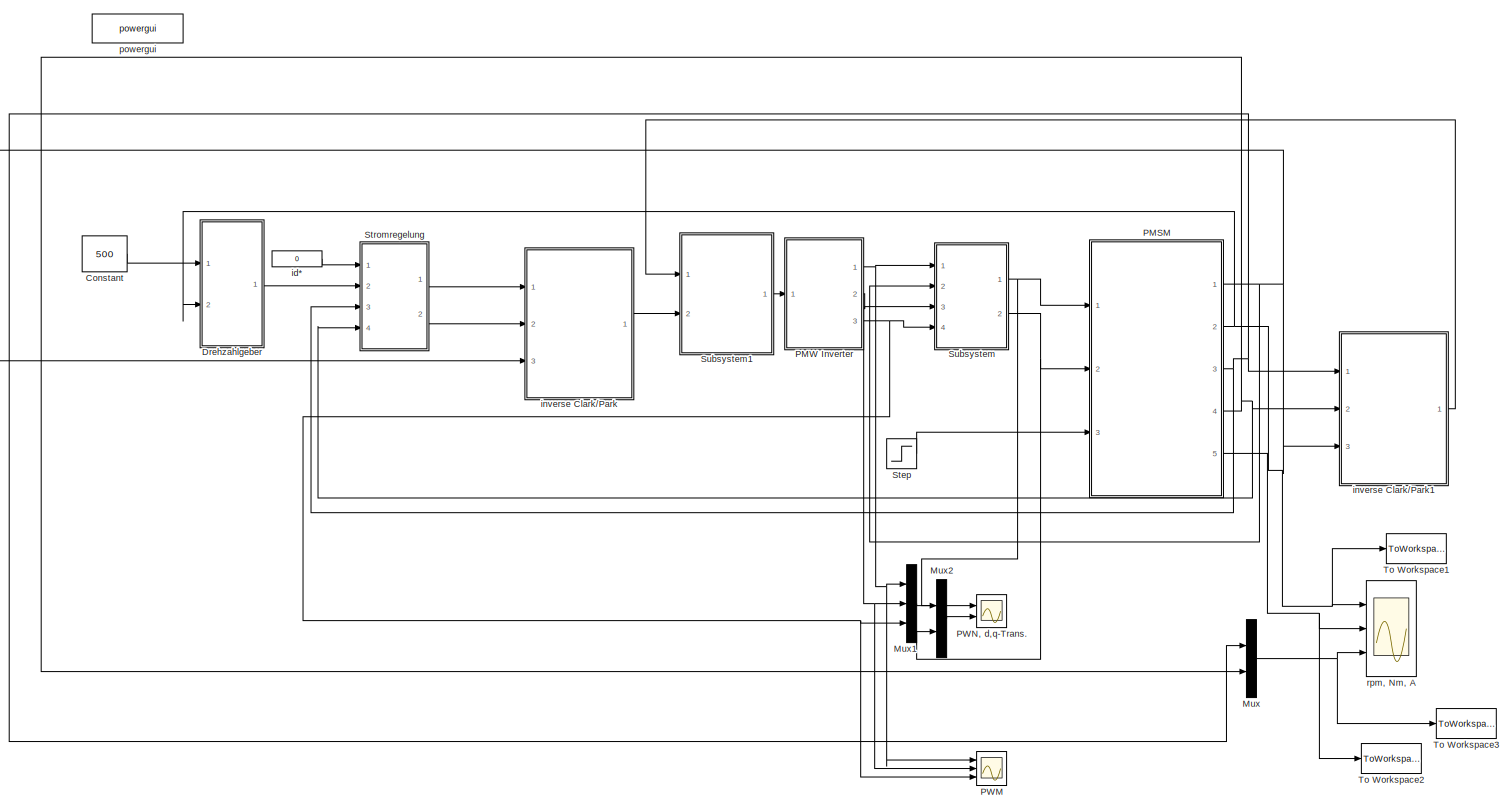
[diagram: root canvas - part 1/1, most of the canvas]
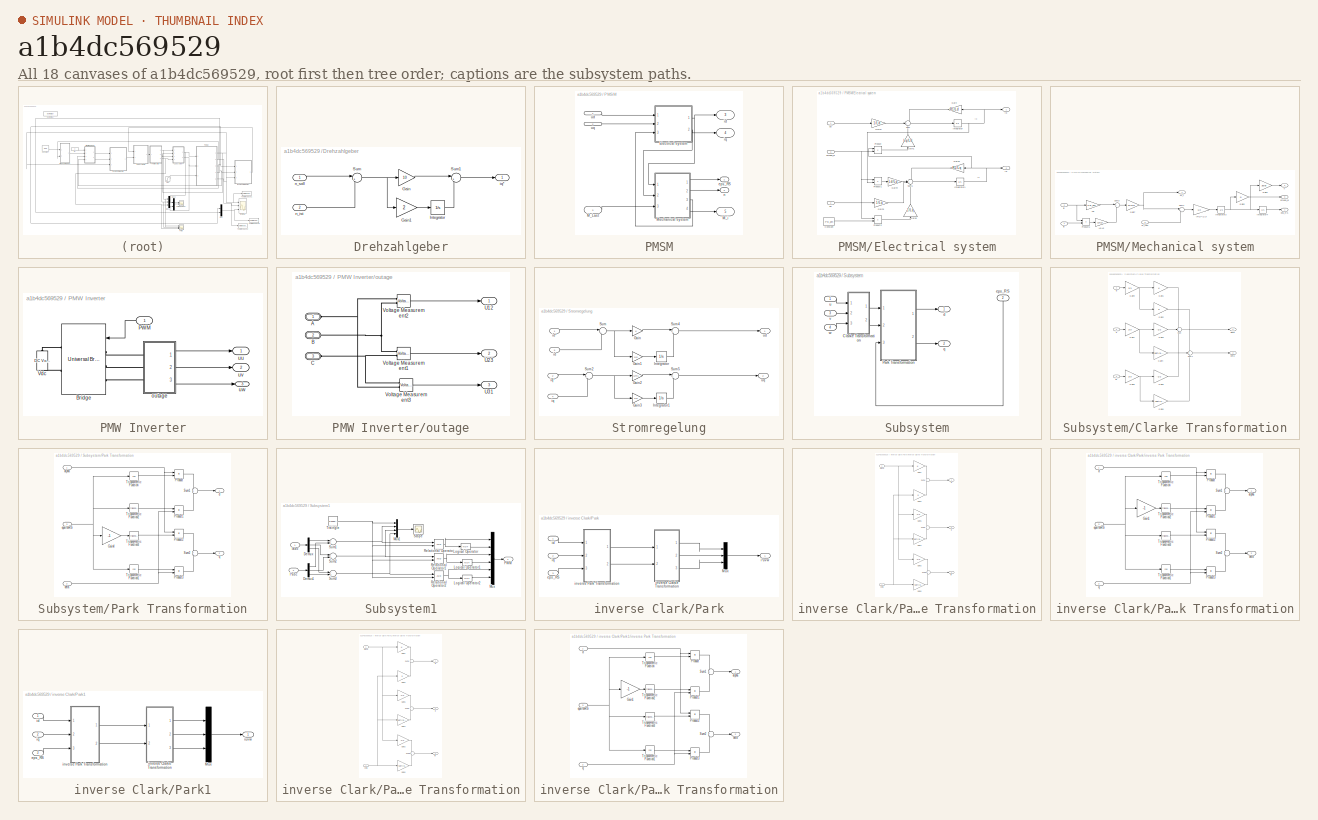
[diagram: thumbnail index - all 18 canvases of the model, root first then tree order]
MODEL slx_a1b4dc569529
KIND model
BLOCK [Constant] Constant
  Value = 500
BLOCK [SubSystem] Drehzahlgeber
  Ports = [2, 1]
  RequestExecContextInheritance = off
BLOCK [Gain] Drehzahlgeber/Gain
  Gain = 10
  OutDataTypeStr = Inherit: Inherit via internal rule
  ParamDataTypeStr = Inherit: Inherit via internal rule
  SaturateOnIntegerOverflow = off
BLOCK [Gain] Drehzahlgeber/Gain1
  Gain = 2
  OutDataTypeStr = Inherit: Inherit via internal rule
  ParamDataTypeStr = Inherit: Inherit via internal rule
  SaturateOnIntegerOverflow = off
BLOCK [Integrator] Drehzahlgeber/Integrator
  Ports = [1, 1]
BLOCK [Sum] Drehzahlgeber/Sum
  IconShape = round
  InputSameDT = off
  Inputs = |+-
  OutDataTypeStr = Inherit: Inherit via internal rule
  Ports = [2, 1]
  SaturateOnIntegerOverflow = off
BLOCK [Sum] Drehzahlgeber/Sum1
  IconShape = round
  InputSameDT = off
  Inputs = |++
  OutDataTypeStr = Inherit: Inherit via internal rule
  Ports = [2, 1]
  SaturateOnIntegerOverflow = off
BLOCK [Outport] Drehzahlgeber/iq*
  IconDisplay = Port number
BLOCK [Inport] Drehzahlgeber/n_ist
  IconDisplay = Port number
  Port = 2
BLOCK [Inport] Drehzahlgeber/n_soll
  IconDisplay = Port number
BLOCK [Mux] Mux
  DisplayOption = bar
  Inputs = 2
  Ports = [2, 1]
BLOCK [Mux] Mux1
  DisplayOption = bar
  Inputs = 3
  Ports = [3, 1]
BLOCK [Mux] Mux2
  DisplayOption = bar
  Inputs = 2
  Ports = [2, 1]
BLOCK [SubSystem] PMSM
  Ports = [3, 5]
  RequestExecContextInheritance = off
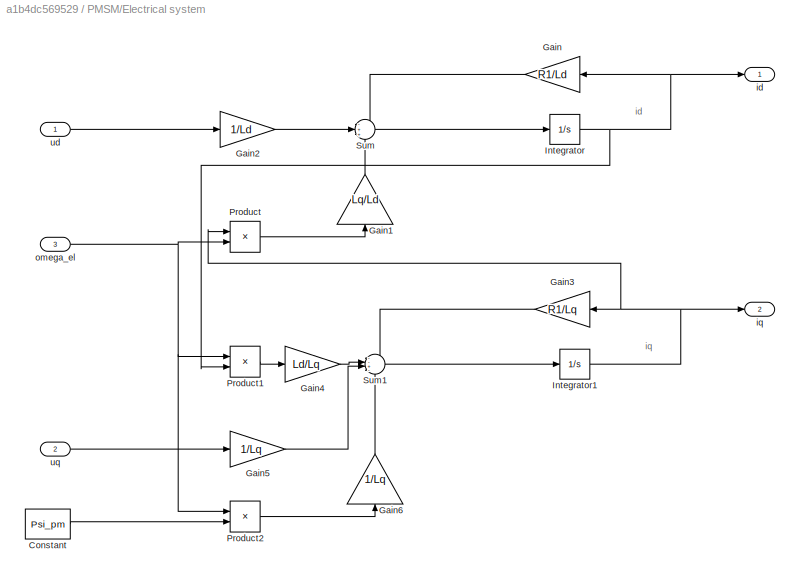
BLOCK [SubSystem] PMSM/Electrical system
  Ports = [3, 2]
  RequestExecContextInheritance = off
BLOCK [Constant] PMSM/Electrical system/Constant
  Value = Psi_pm
BLOCK [Gain] PMSM/Electrical system/Gain
  Gain = R1/Ld
  OutDataTypeStr = Inherit: Inherit via internal rule
  ParamDataTypeStr = Inherit: Inherit via internal rule
  SaturateOnIntegerOverflow = off
BLOCK [Gain] PMSM/Electrical system/Gain1
  Gain = Lq/Ld
  OutDataTypeStr = Inherit: Inherit via internal rule
  ParamDataTypeStr = Inherit: Inherit via internal rule
  SaturateOnIntegerOverflow = off
BLOCK [Gain] PMSM/Electrical system/Gain2
  Gain = 1/Ld
  OutDataTypeStr = Inherit: Inherit via internal rule
  ParamDataTypeStr = Inherit: Inherit via internal rule
  SaturateOnIntegerOverflow = off
BLOCK [Gain] PMSM/Electrical system/Gain3
  Gain = R1/Lq
  OutDataTypeStr = Inherit: Inherit via internal rule
  ParamDataTypeStr = Inherit: Inherit via internal rule
  SaturateOnIntegerOverflow = off
BLOCK [Gain] PMSM/Electrical system/Gain4
  Gain = Ld/Lq
  OutDataTypeStr = Inherit: Inherit via internal rule
  ParamDataTypeStr = Inherit: Inherit via internal rule
  SaturateOnIntegerOverflow = off
BLOCK [Gain] PMSM/Electrical system/Gain5
  Gain = 1/Lq
  OutDataTypeStr = Inherit: Inherit via internal rule
  ParamDataTypeStr = Inherit: Inherit via internal rule
  SaturateOnIntegerOverflow = off
BLOCK [Gain] PMSM/Electrical system/Gain6
  Gain = 1/Lq
  OutDataTypeStr = Inherit: Inherit via internal rule
  ParamDataTypeStr = Inherit: Inherit via internal rule
  SaturateOnIntegerOverflow = off
BLOCK [Integrator] PMSM/Electrical system/Integrator
  Ports = [1, 1]
BLOCK [Integrator] PMSM/Electrical system/Integrator1
  Ports = [1, 1]
BLOCK [Product] PMSM/Electrical system/Product
  InputSameDT = off
  OutDataTypeStr = Inherit: Inherit via internal rule
  Ports = [2, 1]
  RndMeth = Floor
  SaturateOnIntegerOverflow = off
BLOCK [Product] PMSM/Electrical system/Product1
  InputSameDT = off
  OutDataTypeStr = Inherit: Inherit via internal rule
  Ports = [2, 1]
  RndMeth = Floor
  SaturateOnIntegerOverflow = off
BLOCK [Product] PMSM/Electrical system/Product2
  InputSameDT = off
  OutDataTypeStr = Inherit: Inherit via internal rule
  Ports = [2, 1]
  RndMeth = Floor
  SaturateOnIntegerOverflow = off
BLOCK [Sum] PMSM/Electrical system/Sum
  IconShape = round
  InputSameDT = off
  Inputs = -++
  OutDataTypeStr = Inherit: Inherit via internal rule
  Ports = [3, 1]
  SaturateOnIntegerOverflow = off
BLOCK [Sum] PMSM/Electrical system/Sum1
  IconShape = round
  InputSameDT = off
  Inputs = --+-
  OutDataTypeStr = Inherit: Inherit via internal rule
  Ports = [4, 1]
  SaturateOnIntegerOverflow = off
BLOCK [Outport] PMSM/Electrical system/id
  IconDisplay = Port number
BLOCK [Outport] PMSM/Electrical system/iq
  IconDisplay = Port number
  Port = 2
BLOCK [Inport] PMSM/Electrical system/omega_el
  IconDisplay = Port number
  Port = 3
BLOCK [Inport] PMSM/Electrical system/ud
  IconDisplay = Port number
BLOCK [Inport] PMSM/Electrical system/uq
  IconDisplay = Port number
  Port = 2
BLOCK [Inport] PMSM/M_Last
  IconDisplay = Port number
  Port = 3
BLOCK [Outport] PMSM/M_i
  IconDisplay = Port number
  Port = 5
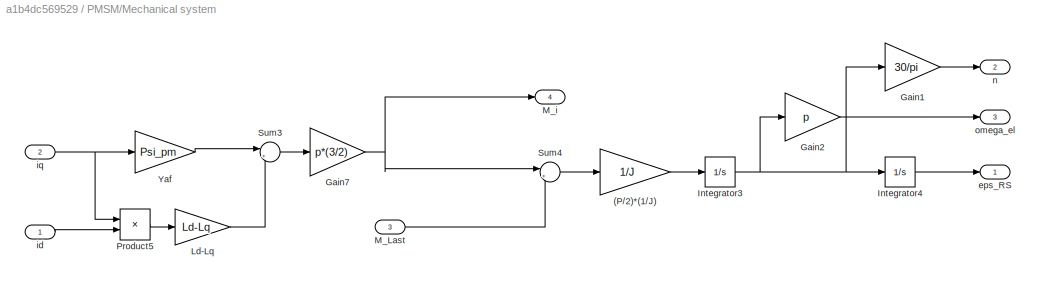
BLOCK [SubSystem] PMSM/Mechanical system
  Ports = [3, 4]
  RequestExecContextInheritance = off
BLOCK [Gain] PMSM/Mechanical system/(P//2)*(1//J)
  Gain = 1/J
  OutDataTypeStr = Inherit: Inherit via internal rule
  ParamDataTypeStr = Inherit: Inherit via internal rule
  SaturateOnIntegerOverflow = off
BLOCK [Gain] PMSM/Mechanical system/Gain1
  Gain = 30/pi
  OutDataTypeStr = Inherit: Inherit via internal rule
  ParamDataTypeStr = Inherit: Inherit via internal rule
  SaturateOnIntegerOverflow = off
BLOCK [Gain] PMSM/Mechanical system/Gain2
  Gain = p
  OutDataTypeStr = Inherit: Inherit via internal rule
  ParamDataTypeStr = Inherit: Inherit via internal rule
  SaturateOnIntegerOverflow = off
BLOCK [Gain] PMSM/Mechanical system/Gain7
  Gain = p*(3/2)
  OutDataTypeStr = Inherit: Inherit via internal rule
  ParamDataTypeStr = Inherit: Inherit via internal rule
  SaturateOnIntegerOverflow = off
BLOCK [Integrator] PMSM/Mechanical system/Integrator3
  Ports = [1, 1]
BLOCK [Integrator] PMSM/Mechanical system/Integrator4
  Ports = [1, 1]
BLOCK [Gain] PMSM/Mechanical system/Ld-Lq
  Gain = Ld-Lq
  OutDataTypeStr = Inherit: Inherit via internal rule
  ParamDataTypeStr = Inherit: Inherit via internal rule
  SaturateOnIntegerOverflow = off
BLOCK [Inport] PMSM/Mechanical system/M_Last
  IconDisplay = Port number
  Port = 3
BLOCK [Outport] PMSM/Mechanical system/M_i
  IconDisplay = Port number
  Port = 4
BLOCK [Product] PMSM/Mechanical system/Product5
  InputSameDT = off
  OutDataTypeStr = Inherit: Inherit via internal rule
  Ports = [2, 1]
  SaturateOnIntegerOverflow = off
BLOCK [Sum] PMSM/Mechanical system/Sum3
  IconShape = round
  InputSameDT = off
  Inputs = |++
  OutDataTypeStr = Inherit: Inherit via internal rule
  Ports = [2, 1]
  SaturateOnIntegerOverflow = off
BLOCK [Sum] PMSM/Mechanical system/Sum4
  IconShape = round
  InputSameDT = off
  Inputs = |+-
  OutDataTypeStr = Inherit: Inherit via internal rule
  Ports = [2, 1]
  SaturateOnIntegerOverflow = off
BLOCK [Gain] PMSM/Mechanical system/Yaf
  Gain = Psi_pm
  OutDataTypeStr = Inherit: Inherit via internal rule
  ParamDataTypeStr = Inherit: Inherit via internal rule
  SaturateOnIntegerOverflow = off
BLOCK [Outport] PMSM/Mechanical system/eps_RS
  IconDisplay = Port number
BLOCK [Inport] PMSM/Mechanical system/id
  IconDisplay = Port number
BLOCK [Inport] PMSM/Mechanical system/iq
  IconDisplay = Port number
  Port = 2
BLOCK [Outport] PMSM/Mechanical system/n
  IconDisplay = Port number
  Port = 2
BLOCK [Outport] PMSM/Mechanical system/omega_el
  IconDisplay = Port number
  Port = 3
BLOCK [Outport] PMSM/eps_RS
  IconDisplay = Port number
BLOCK [Outport] PMSM/id
  IconDisplay = Port number
  Port = 3
BLOCK [Outport] PMSM/iq
  IconDisplay = Port number
  Port = 4
BLOCK [Outport] PMSM/n
  IconDisplay = Port number
  Port = 2
BLOCK [Inport] PMSM/ud 
  IconDisplay = Port number
BLOCK [Inport] PMSM/uq
  IconDisplay = Port number
  Port = 2
BLOCK [SubSystem] PMW Inverter
  Ports = [1, 3]
  RequestExecContextInheritance = off
BLOCK [Reference] PMW Inverter/Bridge  REF=powerlib/Power
Electronics/Universal Bridge
  Arms = 3
  Device = MOSFET / Diodes
  ForwardVoltage = 0
  ForwardVoltages = [  0  0  ]
  GTOparameters = [ 10e-6 , 20e-6 ]
  IGBTparameters = [ 1e-6 , 2e-6 ]
  Lon = 0
  Measurements = None
  Measurements_2 = None
  Ports = [1, 0, 0, 0, 0, 3, 2]
  Ron = 1e-3
  SnubberCapacitance = inf
  SnubberResistance = 1e5
  SourceBlock = powerlib/Power\nElectronics/Universal Bridge
  SourceType = Universal Bridge
  converterType = Rectifier
BLOCK [Inport] PMW Inverter/PWM
  IconDisplay = Port number
BLOCK [Reference] PMW Inverter/Vdc  REF=powerlib/Electrical
Sources/DC Voltage Source
  Amplitude = 100
  Measurements = None
  Ports = [0, 0, 0, 0, 0, 1, 1]
  SourceBlock = powerlib/Electrical\nSources/DC Voltage Source
  SourceType = DC Voltage Source
BLOCK [SubSystem] PMW Inverter/outage
  Ports = [0, 3, 0, 0, 0, 3]
  RequestExecContextInheritance = off
BLOCK [PMIOPort] PMW Inverter/outage/A
  Port = 1
  Side = Left
BLOCK [PMIOPort] PMW Inverter/outage/B
  Port = 2
  Side = Left
BLOCK [PMIOPort] PMW Inverter/outage/C
  Port = 3
  Side = Left
BLOCK [Outport] PMW Inverter/outage/U12
  IconDisplay = Port number
BLOCK [Outport] PMW Inverter/outage/U23
  IconDisplay = Port number
  Port = 2
BLOCK [Outport] PMW Inverter/outage/U31
  IconDisplay = Port number
  Port = 3
BLOCK [Reference] PMW Inverter/outage/Voltage Measurement1  REF=powerlib/Measurements/Voltage Measurement
  OutputType = Complex
  PSBequivalent = 0
  PhasorSimulation = off
  Ports = [0, 1, 0, 0, 0, 2]
  SourceBlock = powerlib/Measurements/Voltage Measurement
  SourceType = Voltage Measurement
BLOCK [Reference] PMW Inverter/outage/Voltage Measurement2  REF=powerlib/Measurements/Voltage Measurement
  OutputType = Complex
  PSBequivalent = 0
  PhasorSimulation = off
  Ports = [0, 1, 0, 0, 0, 2]
  SourceBlock = powerlib/Measurements/Voltage Measurement
  SourceType = Voltage Measurement
BLOCK [Reference] PMW Inverter/outage/Voltage Measurement3  REF=powerlib/Measurements/Voltage Measurement
  OutputType = Complex
  PSBequivalent = 0
  PhasorSimulation = off
  Ports = [0, 1, 0, 0, 0, 2]
  SourceBlock = powerlib/Measurements/Voltage Measurement
  SourceType = Voltage Measurement
BLOCK [Outport] PMW Inverter/uu
  IconDisplay = Port number
BLOCK [Outport] PMW Inverter/uv
  IconDisplay = Port number
  Port = 2
BLOCK [Outport] PMW Inverter/uw
  IconDisplay = Port number
  Port = 3
BLOCK [Scope] PWM
  Floating = off
  NumInputPorts = 3
  Ports = [3]
  SaveName = ScopeData1
  ShowLegends = off
  YMax = 100~120~5
  YMin = -100~-120~-5
  ZoomMode = xonly
BLOCK [Scope] PWN, d,q-Trans.
  Floating = off
  NumInputPorts = 2
  Ports = [2]
  ShowLegends = off
  YMax = 100~120
  YMin = -100~-120
  ZoomMode = xonly
BLOCK [Step] Step
  After = 50
  SampleTime = 0
BLOCK [SubSystem] Stromregelung
  Ports = [4, 2]
  RequestExecContextInheritance = off
BLOCK [Gain] Stromregelung/Gain
  OutDataTypeStr = Inherit: Inherit via internal rule
  ParamDataTypeStr = Inherit: Inherit via internal rule
  SaturateOnIntegerOverflow = off
BLOCK [Gain] Stromregelung/Gain1
  Gain = 0.5
  OutDataTypeStr = Inherit: Inherit via internal rule
  ParamDataTypeStr = Inherit: Inherit via internal rule
  SaturateOnIntegerOverflow = off
BLOCK [Gain] Stromregelung/Gain2
  Gain = 1/R1
  OutDataTypeStr = Inherit: Inherit via internal rule
  ParamDataTypeStr = Inherit: Inherit via internal rule
  SaturateOnIntegerOverflow = off
BLOCK [Gain] Stromregelung/Gain3
  Gain = 0.5
  OutDataTypeStr = Inherit: Inherit via internal rule
  ParamDataTypeStr = Inherit: Inherit via internal rule
  SaturateOnIntegerOverflow = off
BLOCK [Integrator] Stromregelung/Integrator
  Ports = [1, 1]
BLOCK [Integrator] Stromregelung/Integrator1
  Ports = [1, 1]
BLOCK [Sum] Stromregelung/Sum
  IconShape = round
  InputSameDT = off
  Inputs = |+-
  OutDataTypeStr = Inherit: Inherit via internal rule
  Ports = [2, 1]
  SaturateOnIntegerOverflow = off
BLOCK [Sum] Stromregelung/Sum2
  IconShape = round
  InputSameDT = off
  Inputs = |+-
  OutDataTypeStr = Inherit: Inherit via internal rule
  Ports = [2, 1]
  SaturateOnIntegerOverflow = off
BLOCK [Sum] Stromregelung/Sum4
  IconShape = round
  InputSameDT = off
  Inputs = |++
  OutDataTypeStr = Inherit: Inherit via internal rule
  Ports = [2, 1]
  SaturateOnIntegerOverflow = off
BLOCK [Sum] Stromregelung/Sum5
  IconShape = round
  InputSameDT = off
  Inputs = |++
  OutDataTypeStr = Inherit: Inherit via internal rule
  Ports = [2, 1]
  SaturateOnIntegerOverflow = off
BLOCK [Inport] Stromregelung/id
  IconDisplay = Port number
  Port = 3
BLOCK [Inport] Stromregelung/id*
  IconDisplay = Port number
BLOCK [Inport] Stromregelung/iq
  IconDisplay = Port number
  Port = 4
BLOCK [Inport] Stromregelung/iq*
  IconDisplay = Port number
  Port = 2
BLOCK [Outport] Stromregelung/ud
  IconDisplay = Port number
BLOCK [Outport] Stromregelung/uq
  IconDisplay = Port number
  Port = 2
BLOCK [SubSystem] Subsystem
  Ports = [4, 2]
  RequestExecContextInheritance = off
BLOCK [SubSystem] Subsystem/Clarke Transformation
  Ports = [3, 2]
  RequestExecContextInheritance = off
BLOCK [Gain] Subsystem/Clarke Transformation/Gain1
  OutDataTypeStr = Inherit: Inherit via internal rule
  ParamDataTypeStr = Inherit: Inherit via internal rule
  SaturateOnIntegerOverflow = off
BLOCK [Gain] Subsystem/Clarke Transformation/Gain2 
  Gain = 0
  OutDataTypeStr = Inherit: Inherit via internal rule
  ParamDataTypeStr = Inherit: Inherit via internal rule
  SaturateOnIntegerOverflow = off
BLOCK [Gain] Subsystem/Clarke Transformation/Gain3
  Gain = -1/2
  OutDataTypeStr = Inherit: Inherit via internal rule
  ParamDataTypeStr = Inherit: Inherit via internal rule
  SaturateOnIntegerOverflow = off
BLOCK [Gain] Subsystem/Clarke Transformation/Gain4
  Gain = sqrt(3)/2
  OutDataTypeStr = Inherit: Inherit via internal rule
  ParamDataTypeStr = Inherit: Inherit via internal rule
  SaturateOnIntegerOverflow = off
BLOCK [Gain] Subsystem/Clarke Transformation/Gain5
  Gain = -1/2
  OutDataTypeStr = Inherit: Inherit via internal rule
  ParamDataTypeStr = Inherit: Inherit via internal rule
  SaturateOnIntegerOverflow = off
BLOCK [Gain] Subsystem/Clarke Transformation/Gain6
  Gain = -sqrt(3)/2
  OutDataTypeStr = Inherit: Inherit via internal rule
  ParamDataTypeStr = Inherit: Inherit via internal rule
  SaturateOnIntegerOverflow = off
BLOCK [Gain] Subsystem/Clarke Transformation/Gain7
  Gain = 2/3
  OutDataTypeStr = Inherit: Inherit via internal rule
  ParamDataTypeStr = Inherit: Inherit via internal rule
  SaturateOnIntegerOverflow = off
BLOCK [Gain] Subsystem/Clarke Transformation/Gain8
  Gain = 2/3
  OutDataTypeStr = Inherit: Inherit via internal rule
  ParamDataTypeStr = Inherit: Inherit via internal rule
  SaturateOnIntegerOverflow = off
BLOCK [Gain] Subsystem/Clarke Transformation/Gain9
  Gain = 2/3
  OutDataTypeStr = Inherit: Inherit via internal rule
  ParamDataTypeStr = Inherit: Inherit via internal rule
  SaturateOnIntegerOverflow = off
BLOCK [Sum] Subsystem/Clarke Transformation/Sum
  IconShape = round
  InputSameDT = off
  Inputs = +++
  OutDataTypeStr = Inherit: Inherit via internal rule
  Ports = [3, 1]
  SaturateOnIntegerOverflow = off
BLOCK [Sum] Subsystem/Clarke Transformation/Sum1
  IconShape = round
  InputSameDT = off
  Inputs = +++
  OutDataTypeStr = Inherit: Inherit via internal rule
  Ports = [3, 1]
  SaturateOnIntegerOverflow = off
BLOCK [Outport] Subsystem/Clarke Transformation/alpha
  IconDisplay = Port number
BLOCK [Outport] Subsystem/Clarke Transformation/beta
  IconDisplay = Port number
  Port = 2
BLOCK [Inport] Subsystem/Clarke Transformation/iu
  IconDisplay = Port number
BLOCK [Inport] Subsystem/Clarke Transformation/iv
  IconDisplay = Port number
  Port = 2
BLOCK [Inport] Subsystem/Clarke Transformation/iw
  IconDisplay = Port number
  Port = 3
BLOCK [SubSystem] Subsystem/Park Transformation
  Ports = [3, 2]
  RequestExecContextInheritance = off
BLOCK [Gain] Subsystem/Park Transformation/Gain4
  Gain = -1
  OutDataTypeStr = Inherit: Inherit via internal rule
  ParamDataTypeStr = Inherit: Inherit via internal rule
  SaturateOnIntegerOverflow = off
BLOCK [Product] Subsystem/Park Transformation/Product
  InputSameDT = off
  OutDataTypeStr = Inherit: Inherit via internal rule
  Ports = [2, 1]
  RndMeth = Floor
  SaturateOnIntegerOverflow = off
BLOCK [Product] Subsystem/Park Transformation/Product1
  InputSameDT = off
  OutDataTypeStr = Inherit: Inherit via internal rule
  Ports = [2, 1]
  RndMeth = Floor
  SaturateOnIntegerOverflow = off
BLOCK [Product] Subsystem/Park Transformation/Product2
  InputSameDT = off
  OutDataTypeStr = Inherit: Inherit via internal rule
  Ports = [2, 1]
  RndMeth = Floor
  SaturateOnIntegerOverflow = off
BLOCK [Product] Subsystem/Park Transformation/Product3
  InputSameDT = off
  OutDataTypeStr = Inherit: Inherit via internal rule
  Ports = [2, 1]
  RndMeth = Floor
  SaturateOnIntegerOverflow = off
BLOCK [Sum] Subsystem/Park Transformation/Sum1
  IconShape = round
  InputSameDT = off
  OutDataTypeStr = Inherit: Inherit via internal rule
  Ports = [2, 1]
  SaturateOnIntegerOverflow = off
BLOCK [Sum] Subsystem/Park Transformation/Sum2
  IconShape = round
  InputSameDT = off
  OutDataTypeStr = Inherit: Inherit via internal rule
  Ports = [2, 1]
  SaturateOnIntegerOverflow = off
BLOCK [Trigonometry] Subsystem/Park Transformation/Trigonometric Function
  Operator = cos
  Ports = [1, 1]
BLOCK [Trigonometry] Subsystem/Park Transformation/Trigonometric Function1
  Operator = cos
  Ports = [1, 1]
BLOCK [Trigonometry] Subsystem/Park Transformation/Trigonometric Function2
  Ports = [1, 1]
BLOCK [Trigonometry] Subsystem/Park Transformation/Trigonometric Function3
  Ports = [1, 1]
BLOCK [Inport] Subsystem/Park Transformation/alpha
  IconDisplay = Port number
BLOCK [Inport] Subsystem/Park Transformation/beta
  IconDisplay = Port number
  Port = 2
BLOCK [Outport] Subsystem/Park Transformation/d
  IconDisplay = Port number
BLOCK [Inport] Subsystem/Park Transformation/epsilonRS
  IconDisplay = Port number
  Port = 3
BLOCK [Outport] Subsystem/Park Transformation/q
  IconDisplay = Port number
  Port = 2
BLOCK [Outport] Subsystem/d
  IconDisplay = Port number
BLOCK [Inport] Subsystem/eps_RS
  IconDisplay = Port number
  Port = 2
BLOCK [Outport] Subsystem/q
  IconDisplay = Port number
  Port = 2
BLOCK [Inport] Subsystem/u
  IconDisplay = Port number
BLOCK [Inport] Subsystem/v
  IconDisplay = Port number
  Port = 3
BLOCK [Inport] Subsystem/w
  IconDisplay = Port number
  Port = 4
BLOCK [SubSystem] Subsystem1
  Ports = [2, 1]
  RequestExecContextInheritance = off
BLOCK [Demux] Subsystem1/Demux
  DisplayOption = bar
  Outputs = 3
  Ports = [1, 3]
BLOCK [Demux] Subsystem1/Demux1
  DisplayOption = bar
  Outputs = 3
  Ports = [1, 3]
BLOCK [Inport] Subsystem1/I*abc
  IconDisplay = Port number
  Port = 2
BLOCK [Inport] Subsystem1/Iabc
  IconDisplay = Port number
BLOCK [Logic] Subsystem1/Logical Operator
  Operator = NOT
  Ports = [1, 1]
BLOCK [Logic] Subsystem1/Logical Operator1
  Operator = NOT
  Ports = [1, 1]
BLOCK [Logic] Subsystem1/Logical Operator2
  Operator = NOT
  Ports = [1, 1]
BLOCK [Mux] Subsystem1/Mux
  DisplayOption = bar
  Inputs = 6
  Ports = [6, 1]
BLOCK [Mux] Subsystem1/Mux1
  DisplayOption = bar
  Ports = [4, 1]
BLOCK [Outport] Subsystem1/PWM
  IconDisplay = Port number
BLOCK [RelationalOperator] Subsystem1/Relational Operator
  InputSameDT = off
  OutDataTypeStr = boolean
  Ports = [2, 1]
BLOCK [RelationalOperator] Subsystem1/Relational Operator1
  InputSameDT = off
  OutDataTypeStr = boolean
  Ports = [2, 1]
BLOCK [RelationalOperator] Subsystem1/Relational Operator2
  InputSameDT = off
  OutDataTypeStr = boolean
  Ports = [2, 1]
BLOCK [Scope] Subsystem1/Scope
  DataFormat = StructureWithTime
  Floating = off
  NumInputPorts = 1
  Ports = [1]
  SampleTime = 0
  SaveName = ScopeData11
  ShowLegends = off
  YMax = 100
  YMin = -100
  ZoomMode = xonly
BLOCK [Sum] Subsystem1/Sum1
  Inputs = -+
  Ports = [2, 1]
BLOCK [Sum] Subsystem1/Sum2
  Inputs = -+
  Ports = [2, 1]
BLOCK [Sum] Subsystem1/Sum3
  Inputs = -+
  Ports = [2, 1]
BLOCK [Reference] Subsystem1/Traingle  REF=simulink/Sources/Repeating
Sequence
  Ports = [0, 1]
  SourceBlock = simulink/Sources/Repeating\nSequence
  SourceType = Repeating table
  rep_seq_t = [0 1/6000/4 3/6000/4 1/6000]
  rep_seq_y = [0 -30 30 0]
BLOCK [ToWorkspace] To Workspace1
  FixptAsFi = on
  MaxDataPoints = inf
  Ports = [1]
  SampleTime = -1
  Save2DSignal = 3-D array (concatenate along third dimension)
  SaveFormat = Timeseries
  VariableName = rpm
BLOCK [ToWorkspace] To Workspace2
  FixptAsFi = on
  MaxDataPoints = inf
  Ports = [1]
  SampleTime = -1
  Save2DSignal = 3-D array (concatenate along third dimension)
  SaveFormat = Timeseries
  VariableName = T
BLOCK [ToWorkspace] To Workspace3
  FixptAsFi = on
  MaxDataPoints = inf
  Ports = [1]
  SampleTime = -1
  Save2DSignal = 3-D array (concatenate along third dimension)
  SaveFormat = Timeseries
  VariableName = idiq1
BLOCK [Constant] id*
  Value = 0
BLOCK [SubSystem] inverse Clark//Park
  Ports = [3, 1]
  RequestExecContextInheritance = off
BLOCK [Mux] inverse Clark//Park/Mux
  DisplayOption = bar
  Inputs = 3
  Ports = [3, 1]
BLOCK [Inport] inverse Clark//Park/eps_RS
  IconDisplay = Port number
  Port = 3
BLOCK [Outport] inverse Clark//Park/i*uvw
  IconDisplay = Port number
BLOCK [Inport] inverse Clark//Park/id
  IconDisplay = Port number
BLOCK [SubSystem] inverse Clark//Park/inverse Clarke Transformation
  Ports = [2, 3]
  RequestExecContextInheritance = off
BLOCK [Gain] inverse Clark//Park/inverse Clarke Transformation/Gain1
  OutDataTypeStr = Inherit: Inherit via internal rule
  ParamDataTypeStr = Inherit: Inherit via internal rule
  SaturateOnIntegerOverflow = off
BLOCK [Gain] inverse Clark//Park/inverse Clarke Transformation/Gain2
  Gain = -1/2
  OutDataTypeStr = Inherit: Inherit via internal rule
  ParamDataTypeStr = Inherit: Inherit via internal rule
  SaturateOnIntegerOverflow = off
BLOCK [Gain] inverse Clark//Park/inverse Clarke Transformation/Gain2 
  Gain = 0
  OutDataTypeStr = Inherit: Inherit via internal rule
  ParamDataTypeStr = Inherit: Inherit via internal rule
  SaturateOnIntegerOverflow = off
BLOCK [Gain] inverse Clark//Park/inverse Clarke Transformation/Gain4
  Gain = sqrt(3)/2
  OutDataTypeStr = Inherit: Inherit via internal rule
  ParamDataTypeStr = Inherit: Inherit via internal rule
  SaturateOnIntegerOverflow = off
BLOCK [Gain] inverse Clark//Park/inverse Clarke Transformation/Gain5
  Gain = -1/2
  OutDataTypeStr = Inherit: Inherit via internal rule
  ParamDataTypeStr = Inherit: Inherit via internal rule
  SaturateOnIntegerOverflow = off
BLOCK [Gain] inverse Clark//Park/inverse Clarke Transformation/Gain6
  Gain = -sqrt(3)/2
  OutDataTypeStr = Inherit: Inherit via internal rule
  ParamDataTypeStr = Inherit: Inherit via internal rule
  SaturateOnIntegerOverflow = off
BLOCK [Sum] inverse Clark//Park/inverse Clarke Transformation/Sum1
  IconShape = round
  InputSameDT = off
  OutDataTypeStr = Inherit: Inherit via internal rule
  Ports = [2, 1]
  SaturateOnIntegerOverflow = off
BLOCK [Sum] inverse Clark//Park/inverse Clarke Transformation/Sum2
  IconShape = round
  InputSameDT = off
  OutDataTypeStr = Inherit: Inherit via internal rule
  Ports = [2, 1]
  SaturateOnIntegerOverflow = off
BLOCK [Sum] inverse Clark//Park/inverse Clarke Transformation/Sum3
  IconShape = round
  InputSameDT = off
  OutDataTypeStr = Inherit: Inherit via internal rule
  Ports = [2, 1]
  SaturateOnIntegerOverflow = off
BLOCK [Inport] inverse Clark//Park/inverse Clarke Transformation/alpha
  IconDisplay = Port number
BLOCK [Inport] inverse Clark//Park/inverse Clarke Transformation/beta
  IconDisplay = Port number
  Port = 2
BLOCK [Outport] inverse Clark//Park/inverse Clarke Transformation/iu
  IconDisplay = Port number
BLOCK [Outport] inverse Clark//Park/inverse Clarke Transformation/iv
  IconDisplay = Port number
  Port = 2
BLOCK [Outport] inverse Clark//Park/inverse Clarke Transformation/iw
  IconDisplay = Port number
  Port = 3
BLOCK [SubSystem] inverse Clark//Park/inverse Park Transformation
  Ports = [3, 2]
  RequestExecContextInheritance = off
BLOCK [Gain] inverse Clark//Park/inverse Park Transformation/Gain1
  Gain = -1
  OutDataTypeStr = Inherit: Inherit via internal rule
  ParamDataTypeStr = Inherit: Inherit via internal rule
  SaturateOnIntegerOverflow = off
BLOCK [Product] inverse Clark//Park/inverse Park Transformation/Product
  InputSameDT = off
  OutDataTypeStr = Inherit: Inherit via internal rule
  Ports = [2, 1]
  RndMeth = Floor
  SaturateOnIntegerOverflow = off
BLOCK [Product] inverse Clark//Park/inverse Park Transformation/Product1
  InputSameDT = off
  OutDataTypeStr = Inherit: Inherit via internal rule
  Ports = [2, 1]
  RndMeth = Floor
  SaturateOnIntegerOverflow = off
BLOCK [Product] inverse Clark//Park/inverse Park Transformation/Product2
  InputSameDT = off
  OutDataTypeStr = Inherit: Inherit via internal rule
  Ports = [2, 1]
  RndMeth = Floor
  SaturateOnIntegerOverflow = off
BLOCK [Product] inverse Clark//Park/inverse Park Transformation/Product3
  InputSameDT = off
  OutDataTypeStr = Inherit: Inherit via internal rule
  Ports = [2, 1]
  RndMeth = Floor
  SaturateOnIntegerOverflow = off
BLOCK [Sum] inverse Clark//Park/inverse Park Transformation/Sum1
  IconShape = round
  InputSameDT = off
  OutDataTypeStr = Inherit: Inherit via internal rule
  Ports = [2, 1]
  SaturateOnIntegerOverflow = off
BLOCK [Sum] inverse Clark//Park/inverse Park Transformation/Sum2
  IconShape = round
  InputSameDT = off
  OutDataTypeStr = Inherit: Inherit via internal rule
  Ports = [2, 1]
  SaturateOnIntegerOverflow = off
BLOCK [Trigonometry] inverse Clark//Park/inverse Park Transformation/Trigonometric Function
  Operator = cos
  Ports = [1, 1]
BLOCK [Trigonometry] inverse Clark//Park/inverse Park Transformation/Trigonometric Function1
  Operator = cos
  Ports = [1, 1]
BLOCK [Trigonometry] inverse Clark//Park/inverse Park Transformation/Trigonometric Function2
  Ports = [1, 1]
BLOCK [Trigonometry] inverse Clark//Park/inverse Park Transformation/Trigonometric Function3
  Ports = [1, 1]
BLOCK [Outport] inverse Clark//Park/inverse Park Transformation/alpha
  IconDisplay = Port number
BLOCK [Outport] inverse Clark//Park/inverse Park Transformation/beta
  IconDisplay = Port number
  Port = 2
BLOCK [Inport] inverse Clark//Park/inverse Park Transformation/d
  IconDisplay = Port number
BLOCK [Inport] inverse Clark//Park/inverse Park Transformation/epsilonRS
  IconDisplay = Port number
  Port = 3
BLOCK [Inport] inverse Clark//Park/inverse Park Transformation/q
  IconDisplay = Port number
  Port = 2
BLOCK [Inport] inverse Clark//Park/iq
  IconDisplay = Port number
  Port = 2
BLOCK [SubSystem] inverse Clark//Park1
  Ports = [3, 1]
  RequestExecContextInheritance = off
BLOCK [Mux] inverse Clark//Park1/Mux
  DisplayOption = bar
  Inputs = 3
  Ports = [3, 1]
BLOCK [Inport] inverse Clark//Park1/eps_RS
  IconDisplay = Port number
  Port = 3
BLOCK [Inport] inverse Clark//Park1/id
  IconDisplay = Port number
BLOCK [SubSystem] inverse Clark//Park1/inverse Clarke Transformation
  Ports = [2, 3]
  RequestExecContextInheritance = off
BLOCK [Gain] inverse Clark//Park1/inverse Clarke Transformation/Gain1
  OutDataTypeStr = Inherit: Inherit via internal rule
  ParamDataTypeStr = Inherit: Inherit via internal rule
  SaturateOnIntegerOverflow = off
BLOCK [Gain] inverse Clark//Park1/inverse Clarke Transformation/Gain2
  Gain = -1/2
  OutDataTypeStr = Inherit: Inherit via internal rule
  ParamDataTypeStr = Inherit: Inherit via internal rule
  SaturateOnIntegerOverflow = off
BLOCK [Gain] inverse Clark//Park1/inverse Clarke Transformation/Gain2 
  Gain = 0
  OutDataTypeStr = Inherit: Inherit via internal rule
  ParamDataTypeStr = Inherit: Inherit via internal rule
  SaturateOnIntegerOverflow = off
BLOCK [Gain] inverse Clark//Park1/inverse Clarke Transformation/Gain4
  Gain = sqrt(3)/2
  OutDataTypeStr = Inherit: Inherit via internal rule
  ParamDataTypeStr = Inherit: Inherit via internal rule
  SaturateOnIntegerOverflow = off
BLOCK [Gain] inverse Clark//Park1/inverse Clarke Transformation/Gain5
  Gain = -1/2
  OutDataTypeStr = Inherit: Inherit via internal rule
  ParamDataTypeStr = Inherit: Inherit via internal rule
  SaturateOnIntegerOverflow = off
BLOCK [Gain] inverse Clark//Park1/inverse Clarke Transformation/Gain6
  Gain = -sqrt(3)/2
  OutDataTypeStr = Inherit: Inherit via internal rule
  ParamDataTypeStr = Inherit: Inherit via internal rule
  SaturateOnIntegerOverflow = off
BLOCK [Sum] inverse Clark//Park1/inverse Clarke Transformation/Sum1
  IconShape = round
  InputSameDT = off
  OutDataTypeStr = Inherit: Inherit via internal rule
  Ports = [2, 1]
  SaturateOnIntegerOverflow = off
BLOCK [Sum] inverse Clark//Park1/inverse Clarke Transformation/Sum2
  IconShape = round
  InputSameDT = off
  OutDataTypeStr = Inherit: Inherit via internal rule
  Ports = [2, 1]
  SaturateOnIntegerOverflow = off
BLOCK [Sum] inverse Clark//Park1/inverse Clarke Transformation/Sum3
  IconShape = round
  InputSameDT = off
  OutDataTypeStr = Inherit: Inherit via internal rule
  Ports = [2, 1]
  SaturateOnIntegerOverflow = off
BLOCK [Inport] inverse Clark//Park1/inverse Clarke Transformation/alpha
  IconDisplay = Port number
BLOCK [Inport] inverse Clark//Park1/inverse Clarke Transformation/beta
  IconDisplay = Port number
  Port = 2
BLOCK [Outport] inverse Clark//Park1/inverse Clarke Transformation/iu
  IconDisplay = Port number
BLOCK [Outport] inverse Clark//Park1/inverse Clarke Transformation/iv
  IconDisplay = Port number
  Port = 2
BLOCK [Outport] inverse Clark//Park1/inverse Clarke Transformation/iw
  IconDisplay = Port number
  Port = 3
BLOCK [SubSystem] inverse Clark//Park1/inverse Park Transformation
  Ports = [3, 2]
  RequestExecContextInheritance = off
BLOCK [Gain] inverse Clark//Park1/inverse Park Transformation/Gain1
  Gain = -1
  OutDataTypeStr = Inherit: Inherit via internal rule
  ParamDataTypeStr = Inherit: Inherit via internal rule
  SaturateOnIntegerOverflow = off
BLOCK [Product] inverse Clark//Park1/inverse Park Transformation/Product
  InputSameDT = off
  OutDataTypeStr = Inherit: Inherit via internal rule
  Ports = [2, 1]
  RndMeth = Floor
  SaturateOnIntegerOverflow = off
BLOCK [Product] inverse Clark//Park1/inverse Park Transformation/Product1
  InputSameDT = off
  OutDataTypeStr = Inherit: Inherit via internal rule
  Ports = [2, 1]
  RndMeth = Floor
  SaturateOnIntegerOverflow = off
BLOCK [Product] inverse Clark//Park1/inverse Park Transformation/Product2
  InputSameDT = off
  OutDataTypeStr = Inherit: Inherit via internal rule
  Ports = [2, 1]
  RndMeth = Floor
  SaturateOnIntegerOverflow = off
BLOCK [Product] inverse Clark//Park1/inverse Park Transformation/Product3
  InputSameDT = off
  OutDataTypeStr = Inherit: Inherit via internal rule
  Ports = [2, 1]
  RndMeth = Floor
  SaturateOnIntegerOverflow = off
BLOCK [Sum] inverse Clark//Park1/inverse Park Transformation/Sum1
  IconShape = round
  InputSameDT = off
  OutDataTypeStr = Inherit: Inherit via internal rule
  Ports = [2, 1]
  SaturateOnIntegerOverflow = off
BLOCK [Sum] inverse Clark//Park1/inverse Park Transformation/Sum2
  IconShape = round
  InputSameDT = off
  OutDataTypeStr = Inherit: Inherit via internal rule
  Ports = [2, 1]
  SaturateOnIntegerOverflow = off
BLOCK [Trigonometry] inverse Clark//Park1/inverse Park Transformation/Trigonometric Function
  Operator = cos
  Ports = [1, 1]
BLOCK [Trigonometry] inverse Clark//Park1/inverse Park Transformation/Trigonometric Function1
  Operator = cos
  Ports = [1, 1]
BLOCK [Trigonometry] inverse Clark//Park1/inverse Park Transformation/Trigonometric Function2
  Ports = [1, 1]
BLOCK [Trigonometry] inverse Clark//Park1/inverse Park Transformation/Trigonometric Function3
  Ports = [1, 1]
BLOCK [Outport] inverse Clark//Park1/inverse Park Transformation/alpha
  IconDisplay = Port number
BLOCK [Outport] inverse Clark//Park1/inverse Park Transformation/beta
  IconDisplay = Port number
  Port = 2
BLOCK [Inport] inverse Clark//Park1/inverse Park Transformation/d
  IconDisplay = Port number
BLOCK [Inport] inverse Clark//Park1/inverse Park Transformation/epsilonRS
  IconDisplay = Port number
  Port = 3
BLOCK [Inport] inverse Clark//Park1/inverse Park Transformation/q
  IconDisplay = Port number
  Port = 2
BLOCK [Inport] inverse Clark//Park1/iq
  IconDisplay = Port number
  Port = 2
BLOCK [Outport] inverse Clark//Park1/iuvw
  IconDisplay = Port number
BLOCK [Reference] powergui  REF=powerlib/powergui
  DisableRonSwitches = off
  DisableSnubberDevices = off
  DisableVfSwitches = off
  DisplayEquations = off
  DisplayStyle = off
  EnableUseOfTLC = off
  ErrMax = 1e-4
  Frange = logspace(0,3,50)
  FreqAxis = off
  FunctionMessages = off
  HookPort = off
  Interpol = off
  Iterations = 50
  MaxFrequency = 1000
  Pbase = 100e6
  Ports = []
  Priority = 2
  ResistiveCurrentMeasurement = off
  RestoreLinks = warning
  RmsSteady = 1
  SPID = off
  SampleTime = 0
  ShowGrid = off
  SolverType = Tustin
  SourceBlock = powerlib/powergui
  SourceType = PSB option menu block
  StartTime = 0.0
  SwTol = 0
  Ts = 0
  UnitsV = kV
  UnitsW = MW
  UserDataPersistent = on
  Xlog = off
  Ylog = off
  ZoomFFT = on
  cycles = 1
  display = off
  echomessages = off
  frequency = 60
  frequencyindice = 0
  frequencyindicesteady = 1
  fundamental = 60
  methode = off
  save = off
  structure = 0
  variable = ZData
  x0status = blocks
BLOCK [Scope] rpm, Nm, A
  DataFormat = StructureWithTime
  Floating = off
  LimitDataPoints = off
  NumInputPorts = 3
  Ports = [3]
  SampleTime = 0
  SaveName = ScopeData3
  ShowLegends = off
  TimeRange = 0.1
  YMax = 700~77.5~200
  YMin = 400~22.5~-125
  ZoomMode = yonly
ANNOTATION PMSM/Electrical system: id
ANNOTATION PMSM/Electrical system: iq
LINE Constant:1 -> Drehzahlgeber:1
LINE Drehzahlgeber/Gain1:1 -> Drehzahlgeber/Integrator:1
LINE Drehzahlgeber/Gain:1 -> Drehzahlgeber/Sum1:1
LINE Drehzahlgeber/Integrator:1 -> Drehzahlgeber/Sum1:2
LINE Drehzahlgeber/Sum1:1 -> Drehzahlgeber/iq*:1
NET Drehzahlgeber/Sum:1 -> Drehzahlgeber/Gain1:1, Drehzahlgeber/Gain:1
LINE Drehzahlgeber/n_ist:1 -> Drehzahlgeber/Sum:2
LINE Drehzahlgeber/n_soll:1 -> Drehzahlgeber/Sum:1
LINE Drehzahlgeber:1 -> Stromregelung:2
LINE Mux1:1 -> PWN, d,q-Trans.:1
LINE Mux2:1 -> PWN, d,q-Trans.:2
NET Mux:1 -> To Workspace3:1, rpm, Nm, A:3
LINE PMSM/Electrical system/Constant:1 -> PMSM/Electrical system/Product2:2
LINE PMSM/Electrical system/Gain1:1 -> PMSM/Electrical system/Sum:3
LINE PMSM/Electrical system/Gain2:1 -> PMSM/Electrical system/Sum:2
LINE PMSM/Electrical system/Gain3:1 -> PMSM/Electrical system/Sum1:1
LINE PMSM/Electrical system/Gain4:1 -> PMSM/Electrical system/Sum1:2
LINE PMSM/Electrical system/Gain5:1 -> PMSM/Electrical system/Sum1:3
LINE PMSM/Electrical system/Gain6:1 -> PMSM/Electrical system/Sum1:4
LINE PMSM/Electrical system/Gain:1 -> PMSM/Electrical system/Sum:1
NET PMSM/Electrical system/Integrator1:1 -> PMSM/Electrical system/Gain3:1, PMSM/Electrical system/Product:1, PMSM/Electrical system/iq:1
NET PMSM/Electrical system/Integrator:1 -> PMSM/Electrical system/Gain:1, PMSM/Electrical system/Product1:2, PMSM/Electrical system/id:1
LINE PMSM/Electrical system/Product1:1 -> PMSM/Electrical system/Gain4:1
LINE PMSM/Electrical system/Product2:1 -> PMSM/Electrical system/Gain6:1
LINE PMSM/Electrical system/Product:1 -> PMSM/Electrical system/Gain1:1
LINE PMSM/Electrical system/Sum1:1 -> PMSM/Electrical system/Integrator1:1
LINE PMSM/Electrical system/Sum:1 -> PMSM/Electrical system/Integrator:1
NET PMSM/Electrical system/omega_el:1 -> PMSM/Electrical system/Product1:1, PMSM/Electrical system/Product2:1, PMSM/Electrical system/Product:2
LINE PMSM/Electrical system/ud:1 -> PMSM/Electrical system/Gain2:1
LINE PMSM/Electrical system/uq:1 -> PMSM/Electrical system/Gain5:1
NET PMSM/Electrical system:1 -> PMSM/Mechanical system:1, PMSM/id:1
NET PMSM/Electrical system:2 -> PMSM/Mechanical system:2, PMSM/iq:1
LINE PMSM/M_Last:1 -> PMSM/Mechanical system:3
LINE PMSM/Mechanical system/(P//2)*(1//J):1 -> PMSM/Mechanical system/Integrator3:1
LINE PMSM/Mechanical system/Gain1:1 -> PMSM/Mechanical system/n:1
LINE PMSM/Mechanical system/Gain2:1 -> PMSM/Mechanical system/omega_el:1
NET PMSM/Mechanical system/Gain7:1 -> PMSM/Mechanical system/M_i:1, PMSM/Mechanical system/Sum4:1
NET PMSM/Mechanical system/Integrator3:1 -> PMSM/Mechanical system/Gain1:1, PMSM/Mechanical system/Gain2:1, PMSM/Mechanical system/Integrator4:1
LINE PMSM/Mechanical system/Integrator4:1 -> PMSM/Mechanical system/eps_RS:1
LINE PMSM/Mechanical system/Ld-Lq:1 -> PMSM/Mechanical system/Sum3:2
LINE PMSM/Mechanical system/M_Last:1 -> PMSM/Mechanical system/Sum4:2
LINE PMSM/Mechanical system/Product5:1 -> PMSM/Mechanical system/Ld-Lq:1
LINE PMSM/Mechanical system/Sum3:1 -> PMSM/Mechanical system/Gain7:1
LINE PMSM/Mechanical system/Sum4:1 -> PMSM/Mechanical system/(P//2)*(1//J):1
LINE PMSM/Mechanical system/Yaf:1 -> PMSM/Mechanical system/Sum3:1
LINE PMSM/Mechanical system/id:1 -> PMSM/Mechanical system/Product5:2
NET PMSM/Mechanical system/iq:1 -> PMSM/Mechanical system/Product5:1, PMSM/Mechanical system/Yaf:1
LINE PMSM/Mechanical system:1 -> PMSM/eps_RS:1
LINE PMSM/Mechanical system:2 -> PMSM/n:1
LINE PMSM/Mechanical system:3 -> PMSM/Electrical system:3
LINE PMSM/Mechanical system:4 -> PMSM/M_i:1
LINE PMSM/ud :1 -> PMSM/Electrical system:1
LINE PMSM/uq:1 -> PMSM/Electrical system:2
NET PMSM:1 -> Subsystem:2, inverse Clark//Park1:3, inverse Clark//Park:3
NET PMSM:2 -> Drehzahlgeber:2, To Workspace1:1, rpm, Nm, A:1
NET PMSM:3 -> Mux:1, Stromregelung:3, inverse Clark//Park1:1
NET PMSM:4 -> Mux:2, Stromregelung:4, inverse Clark//Park1:2
NET PMSM:5 -> To Workspace2:1, rpm, Nm, A:2
LINE PMW Inverter/PWM:1 -> PMW Inverter/Bridge:1
LINE PMW Inverter/outage/Voltage Measurement1:1 -> PMW Inverter/outage/U23:1
LINE PMW Inverter/outage/Voltage Measurement2:1 -> PMW Inverter/outage/U12:1
LINE PMW Inverter/outage/Voltage Measurement3:1 -> PMW Inverter/outage/U31:1
LINE PMW Inverter/outage:1 -> PMW Inverter/uu:1
LINE PMW Inverter/outage:2 -> PMW Inverter/uv:1
LINE PMW Inverter/outage:3 -> PMW Inverter/uw:1
NET PMW Inverter:1 -> Mux1:1, PWM:1, Subsystem:1
NET PMW Inverter:2 -> Mux1:2, PWM:2, Subsystem:3
NET PMW Inverter:3 -> Mux1:3, PWM:3, Subsystem:4
LINE Step:1 -> PMSM:3
LINE Stromregelung/Gain1:1 -> Stromregelung/Integrator:1
LINE Stromregelung/Gain2:1 -> Stromregelung/Sum5:1
LINE Stromregelung/Gain3:1 -> Stromregelung/Integrator1:1
LINE Stromregelung/Gain:1 -> Stromregelung/Sum4:1
LINE Stromregelung/Integrator1:1 -> Stromregelung/Sum5:2
LINE Stromregelung/Integrator:1 -> Stromregelung/Sum4:2
NET Stromregelung/Sum2:1 -> Stromregelung/Gain2:1, Stromregelung/Gain3:1
LINE Stromregelung/Sum4:1 -> Stromregelung/ud:1
LINE Stromregelung/Sum5:1 -> Stromregelung/uq:1
NET Stromregelung/Sum:1 -> Stromregelung/Gain1:1, Stromregelung/Gain:1
LINE Stromregelung/id*:1 -> Stromregelung/Sum:1
LINE Stromregelung/id:1 -> Stromregelung/Sum:2
LINE Stromregelung/iq*:1 -> Stromregelung/Sum2:1
LINE Stromregelung/iq:1 -> Stromregelung/Sum2:2
LINE Stromregelung:1 -> inverse Clark//Park:1
LINE Stromregelung:2 -> inverse Clark//Park:2
LINE Subsystem/Clarke Transformation/Gain1:1 -> Subsystem/Clarke Transformation/Sum:1
LINE Subsystem/Clarke Transformation/Gain2 :1 -> Subsystem/Clarke Transformation/Sum1:1
LINE Subsystem/Clarke Transformation/Gain3:1 -> Subsystem/Clarke Transformation/Sum:2
LINE Subsystem/Clarke Transformation/Gain4:1 -> Subsystem/Clarke Transformation/Sum1:2
LINE Subsystem/Clarke Transformation/Gain5:1 -> Subsystem/Clarke Transformation/Sum:3
LINE Subsystem/Clarke Transformation/Gain6:1 -> Subsystem/Clarke Transformation/Sum1:3
NET Subsystem/Clarke Transformation/Gain7:1 -> Subsystem/Clarke Transformation/Gain3:1, Subsystem/Clarke Transformation/Gain4:1
NET Subsystem/Clarke Transformation/Gain8:1 -> Subsystem/Clarke Transformation/Gain5:1, Subsystem/Clarke Transformation/Gain6:1
NET Subsystem/Clarke Transformation/Gain9:1 -> Subsystem/Clarke Transformation/Gain1:1, Subsystem/Clarke Transformation/Gain2 :1
LINE Subsystem/Clarke Transformation/Sum1:1 -> Subsystem/Clarke Transformation/beta:1
LINE Subsystem/Clarke Transformation/Sum:1 -> Subsystem/Clarke Transformation/alpha:1
LINE Subsystem/Clarke Transformation/iu:1 -> Subsystem/Clarke Transformation/Gain9:1
LINE Subsystem/Clarke Transformation/iv:1 -> Subsystem/Clarke Transformation/Gain7:1
LINE Subsystem/Clarke Transformation/iw:1 -> Subsystem/Clarke Transformation/Gain8:1
LINE Subsystem/Clarke Transformation:1 -> Subsystem/Park Transformation:1
LINE Subsystem/Clarke Transformation:2 -> Subsystem/Park Transformation:2
LINE Subsystem/Park Transformation/Gain4:1 -> Subsystem/Park Transformation/Trigonometric Function3:1
LINE Subsystem/Park Transformation/Product1:1 -> Subsystem/Park Transformation/Sum1:2
LINE Subsystem/Park Transformation/Product2:1 -> Subsystem/Park Transformation/Sum2:1
LINE Subsystem/Park Transformation/Product3:1 -> Subsystem/Park Transformation/Sum2:2
LINE Subsystem/Park Transformation/Product:1 -> Subsystem/Park Transformation/Sum1:1
LINE Subsystem/Park Transformation/Sum1:1 -> Subsystem/Park Transformation/d:1
LINE Subsystem/Park Transformation/Sum2:1 -> Subsystem/Park Transformation/q:1
LINE Subsystem/Park Transformation/Trigonometric Function1:1 -> Subsystem/Park Transformation/Product3:1
LINE Subsystem/Park Transformation/Trigonometric Function2:1 -> Subsystem/Park Transformation/Product1:1
LINE Subsystem/Park Transformation/Trigonometric Function3:1 -> Subsystem/Park Transformation/Product2:2
LINE Subsystem/Park Transformation/Trigonometric Function:1 -> Subsystem/Park Transformation/Product:2
NET Subsystem/Park Transformation/alpha:1 -> Subsystem/Park Transformation/Product2:1, Subsystem/Park Transformation/Product:1
NET Subsystem/Park Transformation/beta:1 -> Subsystem/Park Transformation/Product1:2, Subsystem/Park Transformation/Product3:2
NET Subsystem/Park Transformation/epsilonRS:1 -> Subsystem/Park Transformation/Gain4:1, Subsystem/Park Transformation/Trigonometric Function1:1, Subsystem/Park Transformation/Trigonometric Function2:1, Subsystem/Park Transformation/Trigonometric Function:1
LINE Subsystem/Park Transformation:1 -> Subsystem/d:1
LINE Subsystem/Park Transformation:2 -> Subsystem/q:1
LINE Subsystem/eps_RS:1 -> Subsystem/Park Transformation:3
LINE Subsystem/u:1 -> Subsystem/Clarke Transformation:1
LINE Subsystem/v:1 -> Subsystem/Clarke Transformation:2
LINE Subsystem/w:1 -> Subsystem/Clarke Transformation:3
LINE Subsystem1/Demux1:1 -> Subsystem1/Sum1:2
LINE Subsystem1/Demux1:2 -> Subsystem1/Sum2:2
LINE Subsystem1/Demux1:3 -> Subsystem1/Sum3:2
LINE Subsystem1/Demux:1 -> Subsystem1/Sum1:1
LINE Subsystem1/Demux:2 -> Subsystem1/Sum2:1
LINE Subsystem1/Demux:3 -> Subsystem1/Sum3:1
LINE Subsystem1/I*abc:1 -> Subsystem1/Demux1:1
LINE Subsystem1/Iabc:1 -> Subsystem1/Demux:1
LINE Subsystem1/Logical Operator1:1 -> Subsystem1/Mux:4
LINE Subsystem1/Logical Operator2:1 -> Subsystem1/Mux:6
LINE Subsystem1/Logical Operator:1 -> Subsystem1/Mux:2
LINE Subsystem1/Mux1:1 -> Subsystem1/Scope:1
LINE Subsystem1/Mux:1 -> Subsystem1/PWM:1
NET Subsystem1/Relational Operator1:1 -> Subsystem1/Logical Operator1:1, Subsystem1/Mux:3
NET Subsystem1/Relational Operator2:1 -> Subsystem1/Logical Operator2:1, Subsystem1/Mux:5
NET Subsystem1/Relational Operator:1 -> Subsystem1/Logical Operator:1, Subsystem1/Mux:1
NET Subsystem1/Sum1:1 -> Subsystem1/Mux1:2, Subsystem1/Relational Operator:1
NET Subsystem1/Sum2:1 -> Subsystem1/Mux1:3, Subsystem1/Relational Operator1:1
NET Subsystem1/Sum3:1 -> Subsystem1/Mux1:4, Subsystem1/Relational Operator2:1
NET Subsystem1/Traingle:1 -> Subsystem1/Mux1:1, Subsystem1/Relational Operator1:2, Subsystem1/Relational Operator2:2, Subsystem1/Relational Operator:2
LINE Subsystem1:1 -> PMW Inverter:1
NET Subsystem:1 -> Mux2:1, PMSM:1
NET Subsystem:2 -> Mux2:2, PMSM:2
LINE id*:1 -> Stromregelung:1
LINE inverse Clark//Park/Mux:1 -> inverse Clark//Park/i*uvw:1
LINE inverse Clark//Park/eps_RS:1 -> inverse Clark//Park/inverse Park Transformation:3
LINE inverse Clark//Park/id:1 -> inverse Clark//Park/inverse Park Transformation:1
LINE inverse Clark//Park/inverse Clarke Transformation/Gain1:1 -> inverse Clark//Park/inverse Clarke Transformation/Sum1:1
LINE inverse Clark//Park/inverse Clarke Transformation/Gain2 :1 -> inverse Clark//Park/inverse Clarke Transformation/Sum1:2
LINE inverse Clark//Park/inverse Clarke Transformation/Gain2:1 -> inverse Clark//Park/inverse Clarke Transformation/Sum3:1
LINE inverse Clark//Park/inverse Clarke Transformation/Gain4:1 -> inverse Clark//Park/inverse Clarke Transformation/Sum2:2
LINE inverse Clark//Park/inverse Clarke Transformation/Gain5:1 -> inverse Clark//Park/inverse Clarke Transformation/Sum2:1
LINE inverse Clark//Park/inverse Clarke Transformation/Gain6:1 -> inverse Clark//Park/inverse Clarke Transformation/Sum3:2
LINE inverse Clark//Park/inverse Clarke Transformation/Sum1:1 -> inverse Clark//Park/inverse Clarke Transformation/iu:1
LINE inverse Clark//Park/inverse Clarke Transformation/Sum2:1 -> inverse Clark//Park/inverse Clarke Transformation/iv:1
LINE inverse Clark//Park/inverse Clarke Transformation/Sum3:1 -> inverse Clark//Park/inverse Clarke Transformation/iw:1
NET inverse Clark//Park/inverse Clarke Transformation/alpha:1 -> inverse Clark//Park/inverse Clarke Transformation/Gain1:1, inverse Clark//Park/inverse Clarke Transformation/Gain2:1, inverse Clark//Park/inverse Clarke Transformation/Gain5:1
NET inverse Clark//Park/inverse Clarke Transformation/beta:1 -> inverse Clark//Park/inverse Clarke Transformation/Gain2 :1, inverse Clark//Park/inverse Clarke Transformation/Gain4:1, inverse Clark//Park/inverse Clarke Transformation/Gain6:1
LINE inverse Clark//Park/inverse Clarke Transformation:1 -> inverse Clark//Park/Mux:1
LINE inverse Clark//Park/inverse Clarke Transformation:2 -> inverse Clark//Park/Mux:2
LINE inverse Clark//Park/inverse Clarke Transformation:3 -> inverse Clark//Park/Mux:3
LINE inverse Clark//Park/inverse Park Transformation/Gain1:1 -> inverse Clark//Park/inverse Park Transformation/Trigonometric Function2:1
LINE inverse Clark//Park/inverse Park Transformation/Product1:1 -> inverse Clark//Park/inverse Park Transformation/Sum1:2
LINE inverse Clark//Park/inverse Park Transformation/Product2:1 -> inverse Clark//Park/inverse Park Transformation/Sum2:1
LINE inverse Clark//Park/inverse Park Transformation/Product3:1 -> inverse Clark//Park/inverse Park Transformation/Sum2:2
LINE inverse Clark//Park/inverse Park Transformation/Product:1 -> inverse Clark//Park/inverse Park Transformation/Sum1:1
LINE inverse Clark//Park/inverse Park Transformation/Sum1:1 -> inverse Clark//Park/inverse Park Transformation/alpha:1
LINE inverse Clark//Park/inverse Park Transformation/Sum2:1 -> inverse Clark//Park/inverse Park Transformation/beta:1
LINE inverse Clark//Park/inverse Park Transformation/Trigonometric Function1:1 -> inverse Clark//Park/inverse Park Transformation/Product3:1
LINE inverse Clark//Park/inverse Park Transformation/Trigonometric Function2:1 -> inverse Clark//Park/inverse Park Transformation/Product1:1
LINE inverse Clark//Park/inverse Park Transformation/Trigonometric Function3:1 -> inverse Clark//Park/inverse Park Transformation/Product2:2
LINE inverse Clark//Park/inverse Park Transformation/Trigonometric Function:1 -> inverse Clark//Park/inverse Park Transformation/Product:2
NET inverse Clark//Park/inverse Park Transformation/d:1 -> inverse Clark//Park/inverse Park Transformation/Product2:1, inverse Clark//Park/inverse Park Transformation/Product:1
NET inverse Clark//Park/inverse Park Transformation/epsilonRS:1 -> inverse Clark//Park/inverse Park Transformation/Gain1:1, inverse Clark//Park/inverse Park Transformation/Trigonometric Function1:1, inverse Clark//Park/inverse Park Transformation/Trigonometric Function3:1, inverse Clark//Park/inverse Park Transformation/Trigonometric Function:1
NET inverse Clark//Park/inverse Park Transformation/q:1 -> inverse Clark//Park/inverse Park Transformation/Product1:2, inverse Clark//Park/inverse Park Transformation/Product3:2
LINE inverse Clark//Park/inverse Park Transformation:1 -> inverse Clark//Park/inverse Clarke Transformation:1
LINE inverse Clark//Park/inverse Park Transformation:2 -> inverse Clark//Park/inverse Clarke Transformation:2
LINE inverse Clark//Park/iq:1 -> inverse Clark//Park/inverse Park Transformation:2
LINE inverse Clark//Park1/Mux:1 -> inverse Clark//Park1/iuvw:1
LINE inverse Clark//Park1/eps_RS:1 -> inverse Clark//Park1/inverse Park Transformation:3
LINE inverse Clark//Park1/id:1 -> inverse Clark//Park1/inverse Park Transformation:1
LINE inverse Clark//Park1/inverse Clarke Transformation/Gain1:1 -> inverse Clark//Park1/inverse Clarke Transformation/Sum1:1
LINE inverse Clark//Park1/inverse Clarke Transformation/Gain2 :1 -> inverse Clark//Park1/inverse Clarke Transformation/Sum1:2
LINE inverse Clark//Park1/inverse Clarke Transformation/Gain2:1 -> inverse Clark//Park1/inverse Clarke Transformation/Sum3:1
LINE inverse Clark//Park1/inverse Clarke Transformation/Gain4:1 -> inverse Clark//Park1/inverse Clarke Transformation/Sum2:2
LINE inverse Clark//Park1/inverse Clarke Transformation/Gain5:1 -> inverse Clark//Park1/inverse Clarke Transformation/Sum2:1
LINE inverse Clark//Park1/inverse Clarke Transformation/Gain6:1 -> inverse Clark//Park1/inverse Clarke Transformation/Sum3:2
LINE inverse Clark//Park1/inverse Clarke Transformation/Sum1:1 -> inverse Clark//Park1/inverse Clarke Transformation/iu:1
LINE inverse Clark//Park1/inverse Clarke Transformation/Sum2:1 -> inverse Clark//Park1/inverse Clarke Transformation/iv:1
LINE inverse Clark//Park1/inverse Clarke Transformation/Sum3:1 -> inverse Clark//Park1/inverse Clarke Transformation/iw:1
NET inverse Clark//Park1/inverse Clarke Transformation/alpha:1 -> inverse Clark//Park1/inverse Clarke Transformation/Gain1:1, inverse Clark//Park1/inverse Clarke Transformation/Gain2:1, inverse Clark//Park1/inverse Clarke Transformation/Gain5:1
NET inverse Clark//Park1/inverse Clarke Transformation/beta:1 -> inverse Clark//Park1/inverse Clarke Transformation/Gain2 :1, inverse Clark//Park1/inverse Clarke Transformation/Gain4:1, inverse Clark//Park1/inverse Clarke Transformation/Gain6:1
LINE inverse Clark//Park1/inverse Clarke Transformation:1 -> inverse Clark//Park1/Mux:1
LINE inverse Clark//Park1/inverse Clarke Transformation:2 -> inverse Clark//Park1/Mux:2
LINE inverse Clark//Park1/inverse Clarke Transformation:3 -> inverse Clark//Park1/Mux:3
LINE inverse Clark//Park1/inverse Park Transformation/Gain1:1 -> inverse Clark//Park1/inverse Park Transformation/Trigonometric Function2:1
LINE inverse Clark//Park1/inverse Park Transformation/Product1:1 -> inverse Clark//Park1/inverse Park Transformation/Sum1:2
LINE inverse Clark//Park1/inverse Park Transformation/Product2:1 -> inverse Clark//Park1/inverse Park Transformation/Sum2:1
LINE inverse Clark//Park1/inverse Park Transformation/Product3:1 -> inverse Clark//Park1/inverse Park Transformation/Sum2:2
LINE inverse Clark//Park1/inverse Park Transformation/Product:1 -> inverse Clark//Park1/inverse Park Transformation/Sum1:1
LINE inverse Clark//Park1/inverse Park Transformation/Sum1:1 -> inverse Clark//Park1/inverse Park Transformation/alpha:1
LINE inverse Clark//Park1/inverse Park Transformation/Sum2:1 -> inverse Clark//Park1/inverse Park Transformation/beta:1
LINE inverse Clark//Park1/inverse Park Transformation/Trigonometric Function1:1 -> inverse Clark//Park1/inverse Park Transformation/Product3:1
LINE inverse Clark//Park1/inverse Park Transformation/Trigonometric Function2:1 -> inverse Clark//Park1/inverse Park Transformation/Product1:1
LINE inverse Clark//Park1/inverse Park Transformation/Trigonometric Function3:1 -> inverse Clark//Park1/inverse Park Transformation/Product2:2
LINE inverse Clark//Park1/inverse Park Transformation/Trigonometric Function:1 -> inverse Clark//Park1/inverse Park Transformation/Product:2
NET inverse Clark//Park1/inverse Park Transformation/d:1 -> inverse Clark//Park1/inverse Park Transformation/Product2:1, inverse Clark//Park1/inverse Park Transformation/Product:1
NET inverse Clark//Park1/inverse Park Transformation/epsilonRS:1 -> inverse Clark//Park1/inverse Park Transformation/Gain1:1, inverse Clark//Park1/inverse Park Transformation/Trigonometric Function1:1, inverse Clark//Park1/inverse Park Transformation/Trigonometric Function3:1, inverse Clark//Park1/inverse Park Transformation/Trigonometric Function:1
NET inverse Clark//Park1/inverse Park Transformation/q:1 -> inverse Clark//Park1/inverse Park Transformation/Product1:2, inverse Clark//Park1/inverse Park Transformation/Product3:2
LINE inverse Clark//Park1/inverse Park Transformation:1 -> inverse Clark//Park1/inverse Clarke Transformation:1
LINE inverse Clark//Park1/inverse Park Transformation:2 -> inverse Clark//Park1/inverse Clarke Transformation:2
LINE inverse Clark//Park1/iq:1 -> inverse Clark//Park1/inverse Park Transformation:2
LINE inverse Clark//Park1:1 -> Subsystem1:1
LINE inverse Clark//Park:1 -> Subsystem1:2
PLINE PMW Inverter/Bridge:LConn1 -- PMW Inverter/outage:LConn1
PLINE PMW Inverter/Bridge:LConn2 -- PMW Inverter/outage:LConn2
PLINE PMW Inverter/Bridge:LConn3 -- PMW Inverter/outage:LConn3
PLINE PMW Inverter/Bridge:RConn1 -- PMW Inverter/Vdc:RConn1
PLINE PMW Inverter/Bridge:RConn2 -- PMW Inverter/Vdc:LConn1
PNET net1: PMW Inverter/outage/A:RConn1 -- PMW Inverter/outage/Voltage Measurement2:LConn1 -- PMW Inverter/outage/Voltage Measurement3:LConn2
PNET net2: PMW Inverter/outage/B:RConn1 -- PMW Inverter/outage/Voltage Measurement1:LConn1 -- PMW Inverter/outage/Voltage Measurement2:LConn2
PNET net3: PMW Inverter/outage/C:RConn1 -- PMW Inverter/outage/Voltage Measurement1:LConn2 -- PMW Inverter/outage/Voltage Measurement3:LConn1
note: NET lines group one-source signal fan-out (src -> all destinations, sorted); 1:1 wires keep LINE; PNET lines group multi-terminal physical nets as a canonical sorted terminal list (undirected conserving connections); 2-terminal nets keep the pairwise PLINE form
